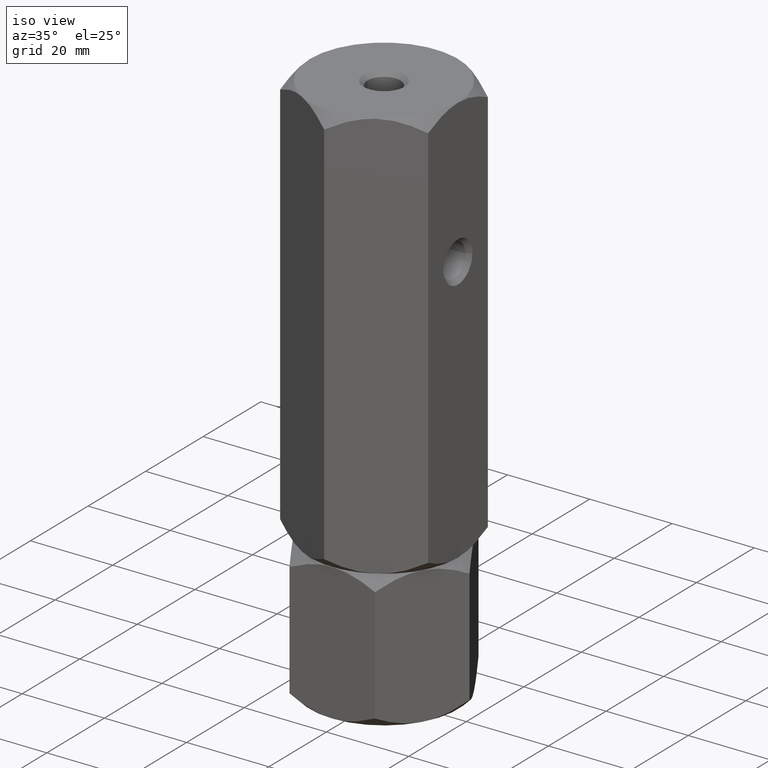
[diagram: clean part render]
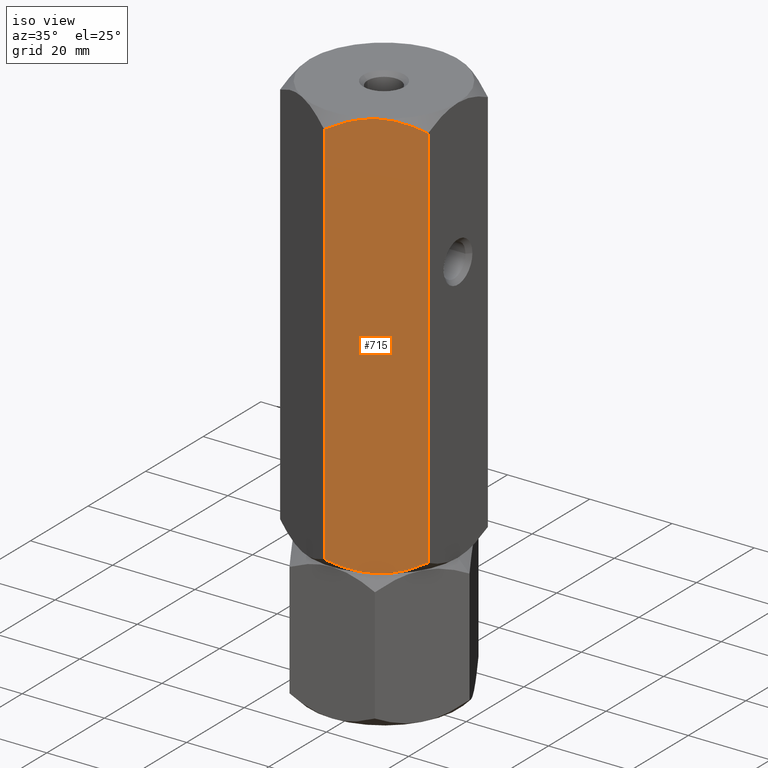
[diagram: same view with one face highlighted and labeled with its STEP entity id]
A machine part, iso view. The second image highlights one B-rep face of the part: STEP entity #715.
In plain terms, the highlighted planar face has unit normal (-0.5, 0.866, 0).
Its self-contained STEP definition (entity closure, byte-faithful):
#6 = CARTESIAN_POINT ( 'NONE',  ( 5.895697476400517445, -17.38072716576609622, 33.60972924045488952 ) ) ;
#15 = CARTESIAN_POINT ( 'NONE',  ( 18.00000000000000355, -10.39230484541326938, 36.11794302415982116 ) ) ;
#55 = DIRECTION ( 'NONE',  ( -0.8660254037844388186, -0.4999999999999996114, 0.000000000000000000 ) ) ;
#56 = CARTESIAN_POINT ( 'NONE',  ( 12.90267270303527525, -13.33524813246348018, 33.87041888916230903 ) ) ;
#61 = ORIENTED_EDGE ( 'NONE', *, *, #1403, .F. ) ;
#121 = VERTEX_POINT ( 'NONE', #1862 ) ;
#145 = CARTESIAN_POINT ( 'NONE',  ( 18.00000000000000355, -10.39230484541327115, 130.5487236425067863 ) ) ;
#168 = CARTESIAN_POINT ( 'NONE',  ( -6.297340013485389316E-15, -20.78460969082653165, 130.5487236425067863 ) ) ;
#188 = EDGE_CURVE ( 'NONE', #1340, #427, #1611, .T. ) ;
#227 = ORIENTED_EDGE ( 'NONE', *, *, #852, .F. ) ;
#242 = CARTESIAN_POINT ( 'NONE',  ( 10.58425150785353885, -14.67378923359658494, 33.42028022345144933 ) ) ;
#255 = EDGE_CURVE ( 'NONE', #1649, #1209, #672, .T. ) ;
#281 = VERTEX_POINT ( 'NONE', #168 ) ;
#304 = CARTESIAN_POINT ( 'NONE',  ( 5.858009779716792487, -17.40248616759157940, 132.9927702310780262 ) ) ;
#320 = CARTESIAN_POINT ( 'NONE',  ( 7.434539168300452694, -16.49227650070744744, 33.33333333333330017 ) ) ;
#376 = FACE_OUTER_BOUND ( 'NONE', #1529, .T. ) ;
#427 = VERTEX_POINT ( 'NONE', #848 ) ;
#431 = CARTESIAN_POINT ( 'NONE',  ( 16.59030399953601531, -11.20619321075669816, 131.3626120078502595 ) ) ;
#445 = CARTESIAN_POINT ( 'NONE',  ( 8.999999999999994671, -15.58845726811989785, 133.3333333333333144 ) ) ;
#449 = CARTESIAN_POINT ( 'NONE',  ( 7.415748492146449600, -16.50312530264321609, 133.2463864432151297 ) ) ;
#460 = ORIENTED_EDGE ( 'NONE', *, *, #650, .T. ) ;
#513 = CARTESIAN_POINT ( 'NONE',  ( -2.998680872865238938E-15, -20.78460969082652809, 133.3333333333333144 ) ) ;
#587 = CARTESIAN_POINT ( 'NONE',  ( 8.999999999999994671, -15.58845726811989785, 133.3333333333333144 ) ) ;
#601 = CARTESIAN_POINT ( 'NONE',  ( 1.411330396252042485, -19.96977770663490048, 131.3635556266983428 ) ) ;
#649 = CARTESIAN_POINT ( 'NONE',  ( 16.58866960374795951, -11.20713682960488988, 35.30311103996820776 ) ) ;
#650 = EDGE_CURVE ( 'NONE', #281, #1209, #1119, .T. ) ;
#672 = B_SPLINE_CURVE_WITH_KNOTS ( 'NONE', 3,
 ( #1891, #320, #6, #1228, #1698, #911 ),
 .UNSPECIFIED., .F., .F.,
 ( 4, 2, 4 ),
 ( 0.01077282027732747761, 0.01612137750481874160, 0.02146993473231000732 ),
 .UNSPECIFIED. ) ;
#704 = DIRECTION ( 'NONE',  ( -0.4999999999999996114, 0.8660254037844388186, 0.000000000000000000 ) ) ;
#705 = CARTESIAN_POINT ( 'NONE',  ( 12.14199022028319774, -13.77442836864822517, 33.67389643558856704 ) ) ;
#706 = CARTESIAN_POINT ( 'NONE',  ( 8.999999999999994671, -15.58845726811989785, 133.3333333333333144 ) ) ;
#715 = ADVANCED_FACE ( 'NONE', ( #376 ), #846, .F. ) ;
#740 = CARTESIAN_POINT ( 'NONE',  ( 2.854601888853805836, -19.13650452186756823, 132.0559502554434061 ) ) ;
#748 = CARTESIAN_POINT ( 'NONE',  ( 8.209538469370119884, -16.04483044561310479, 133.3160004768592444 ) ) ;
#785 = ORIENTED_EDGE ( 'NONE', *, *, #1972, .F. ) ;
#788 = B_SPLINE_CURVE_WITH_KNOTS ( 'NONE', 3,
 ( #15, #649, #847, #56, #705, #1331, #242, #873, #1357, #1199 ),
 .UNSPECIFIED., .F., .F.,
 ( 4, 2, 2, 2, 4 ),
 ( 2.544307986796311447E-07, 0.005386537354063079472, 0.008079678815695276808, 0.009426249546511377211, 0.01077282027732747761 ),
 .UNSPECIFIED. ) ;
#846 = PLANE ( 'NONE',  #934 ) ;
#847 = CARTESIAN_POINT ( 'NONE',  ( 15.14539811114618750, -12.04041001437223102, 34.61071641122316578 ) ) ;
#848 = CARTESIAN_POINT ( 'NONE',  ( 18.00000000000000355, -10.39230484541327115, 130.5487236425067863 ) ) ;
#852 = EDGE_CURVE ( 'NONE', #121, #1649, #788, .T. ) ;
#873 = CARTESIAN_POINT ( 'NONE',  ( 9.790461530629871234, -15.13208409062669801, 33.35066618980737019 ) ) ;
#898 = VECTOR ( 'NONE', #949, 1000.000000000000000 ) ;
#911 = CARTESIAN_POINT ( 'NONE',  ( -3.379014044959083873E-15, -20.78460969082652809, 36.11794302415981406 ) ) ;
#912 = CARTESIAN_POINT ( 'NONE',  ( -3.379014044959083873E-15, -20.78460969082652809, 36.11794302415981406 ) ) ;
#916 = CARTESIAN_POINT ( 'NONE',  ( -6.297340013485389316E-15, -20.78460969082653165, 130.5487236425067863 ) ) ;
#934 = AXIS2_PLACEMENT_3D ( 'NONE', #1477, #704, #55 ) ;
#942 = CARTESIAN_POINT ( 'NONE',  ( 10.56546083169953398, -14.68463803553235358, 133.3333333333332860 ) ) ;
#949 = DIRECTION ( 'NONE',  ( -0.000000000000000000, -0.000000000000000000, -1.000000000000000000 ) ) ;
#1098 = ORIENTED_EDGE ( 'NONE', *, *, #188, .F. ) ;
#1119 = LINE ( 'NONE', #513, #898 ) ;
#1199 = CARTESIAN_POINT ( 'NONE',  ( 8.999999999999996447, -15.58845726811990140, 33.33333333333330017 ) ) ;
#1209 = VERTEX_POINT ( 'NONE', #912 ) ;
#1216 = CARTESIAN_POINT ( 'NONE',  ( 8.605874323383771340, -15.81600583360882872, 133.3333333333333428 ) ) ;
#1228 = CARTESIAN_POINT ( 'NONE',  ( 2.860715810337960185, -19.13297464765288325, 34.60590803483753319 ) ) ;
#1331 = CARTESIAN_POINT ( 'NONE',  ( 10.97671975407794953, -14.44719758599054238, 33.47205593243187138 ) ) ;
#1340 = VERTEX_POINT ( 'NONE', #706 ) ;
#1357 = CARTESIAN_POINT ( 'NONE',  ( 9.394125676616221554, -15.36090870263097585, 33.33333333333330017 ) ) ;
#1403 = EDGE_CURVE ( 'NONE', #281, #1340, #1949, .T. ) ;
#1466 = VECTOR ( 'NONE', #1746, 1000.000000000000000 ) ;
#1477 = CARTESIAN_POINT ( 'NONE',  ( -2.998680872865238938E-15, -20.78460969082652809, 133.3333333333333144 ) ) ;
#1529 = EDGE_LOOP ( 'NONE', ( #61, #460, #1580, #227, #785, #1098 ) ) ;
#1541 = CARTESIAN_POINT ( 'NONE',  ( 7.023280245922038034, -16.72971695024925864, 133.1946107342347148 ) ) ;
#1544 = CARTESIAN_POINT ( 'NONE',  ( 12.10430252359947900, -13.79618737047371013, 133.0569374262117606 ) ) ;
#1580 = ORIENTED_EDGE ( 'NONE', *, *, #255, .F. ) ;
#1611 = B_SPLINE_CURVE_WITH_KNOTS ( 'NONE', 3,
 ( #445, #942, #1544, #2021, #431, #145 ),
 .UNSPECIFIED., .F., .F.,
 ( 4, 2, 4 ),
 ( 0.01077282027732746894, 0.01612137750481873466, 0.02146993473230999691 ),
 .UNSPECIFIED. ) ;
#1649 = VERTEX_POINT ( 'NONE', #1758 ) ;
#1698 = CARTESIAN_POINT ( 'NONE',  ( 1.409696000463980914, -19.97072132548311174, 35.30405465881634797 ) ) ;
#1724 = LINE ( 'NONE', #2050, #1466 ) ;
#1746 = DIRECTION ( 'NONE',  ( -0.000000000000000000, -0.000000000000000000, -1.000000000000000000 ) ) ;
#1758 = CARTESIAN_POINT ( 'NONE',  ( 8.999999999999996447, -15.58845726811990140, 33.33333333333330017 ) ) ;
#1855 = CARTESIAN_POINT ( 'NONE',  ( 5.097327296964715870, -17.84166640377631907, 132.7962477775043055 ) ) ;
#1862 = CARTESIAN_POINT ( 'NONE',  ( 18.00000000000000355, -10.39230484541326938, 36.11794302415982116 ) ) ;
#1891 = CARTESIAN_POINT ( 'NONE',  ( 8.999999999999996447, -15.58845726811990140, 33.33333333333330017 ) ) ;
#1949 = B_SPLINE_CURVE_WITH_KNOTS ( 'NONE', 3,
 ( #916, #601, #740, #1855, #304, #1541, #449, #748, #1216, #587 ),
 .UNSPECIFIED., .F., .F.,
 ( 4, 2, 2, 2, 4 ),
 ( 2.544307986837308371E-07, 0.005386537354063076870, 0.008079678815695273339, 0.009426249546511372007, 0.01077282027732746894 ),
 .UNSPECIFIED. ) ;
#1972 = EDGE_CURVE ( 'NONE', #427, #121, #1724, .T. ) ;
#2021 = CARTESIAN_POINT ( 'NONE',  ( 15.13928418966203360, -12.04393988858691067, 132.0607586318289748 ) ) ;
#2050 = CARTESIAN_POINT ( 'NONE',  ( 18.00000000000000355, -10.39230484541326938, 133.3333333333333144 ) ) ;